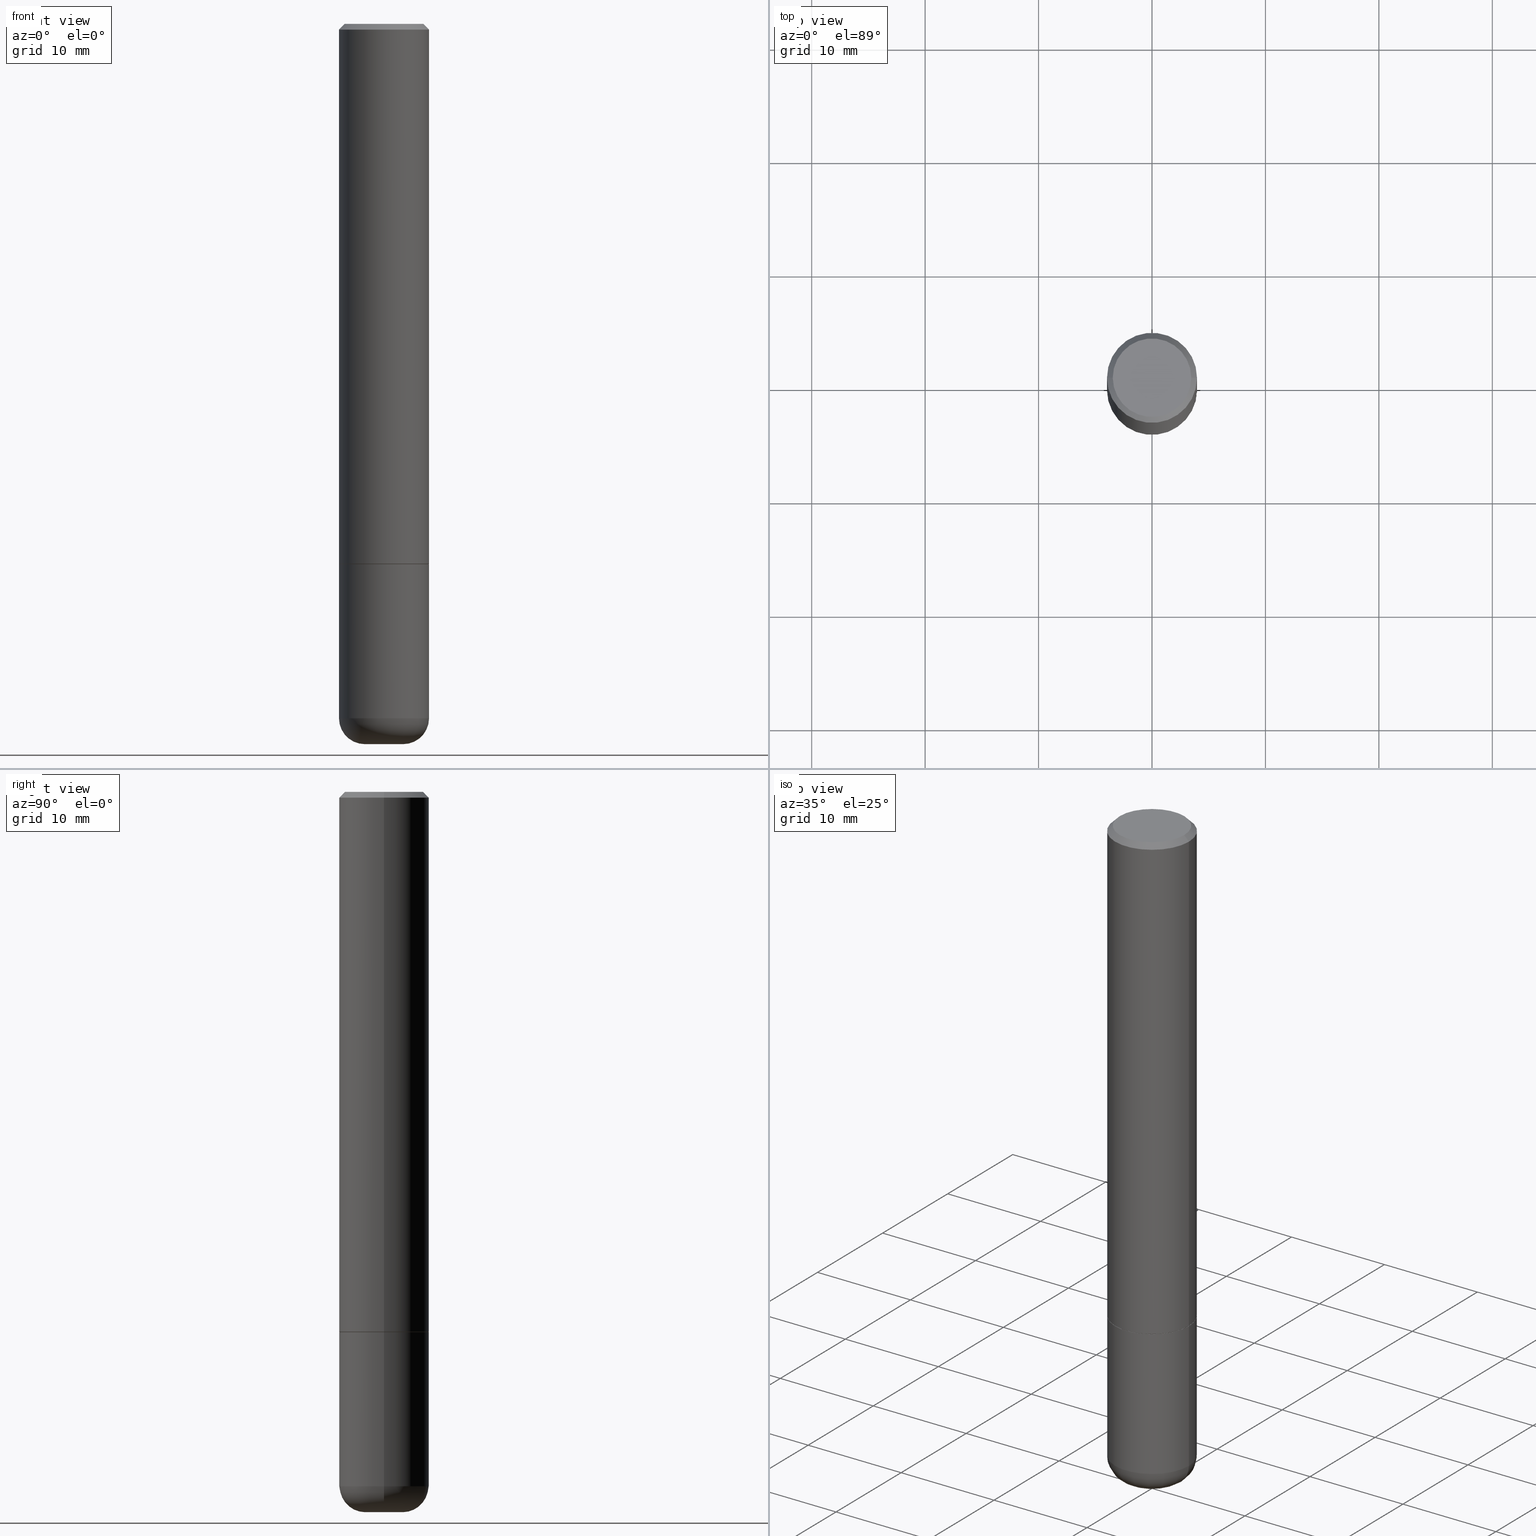
[diagram: canonical four-view strip — front | top / right | iso, engineering-drawing reading convention]
A machine part, canonical four-view strip (front | top / right | iso — engineering-drawing reading convention). The complete STEP part file that produces these views, byte-faithful:
ISO-10303-21;
HEADER;
FILE_DESCRIPTION (( 'STEP AP203' ),
    '1' );
FILE_NAME ('38813.STEP',
    '2024-03-03T14:22:21',
    ( '' ),
    ( '' ),
    'SwSTEP 2.0',
    'SolidWorks 2023',
    '' );
FILE_SCHEMA (( 'CONFIG_CONTROL_DESIGN' ));
ENDSEC;

DATA;
#1 = CARTESIAN_POINT ( 'NONE',  ( 4.890937612370281041E-31, -6.982962677686302702E-17, -0.02000000000000003511 ) ) ;
#2 = DIRECTION ( 'NONE',  ( 1.000000000000000000, -6.982962677686266711E-15, 4.876176775795936353E-29 ) ) ;
#3 = EDGE_CURVE ( 'NONE', #276, #123, #104, .T. ) ;
#4 = CARTESIAN_POINT ( 'NONE',  ( -0.06625000000000001721, -7.781107893326811349E-15, -2.500000000000000000 ) ) ;
#5 = EDGE_CURVE ( 'NONE', #358, #157, #407, .T. ) ;
#6 = CONICAL_SURFACE ( 'NONE', #291, 0.1552499999999999991, 0.7853981633975165577 ) ;
#7 = FACE_OUTER_BOUND ( 'NONE', #91, .T. ) ;
#8 = LINE ( 'NONE', #65, #169 ) ;
#9 = DIRECTION ( 'NONE',  ( 1.000000000000000000, -6.982962677686268288E-15, 0.000000000000000000 ) ) ;
#10 = DIRECTION ( 'NONE',  ( -2.445468806185136597E-29, 3.491481338843145583E-15, 1.000000000000000000 ) ) ;
#11 = PERSON_AND_ORGANIZATION_ROLE ( 'design_owner' ) ;
#12 = CARTESIAN_POINT ( 'NONE',  ( 0.1562500000000000000, -7.637615428719378669E-15, -1.875000000000000000 ) ) ;
#13 = ORIENTED_EDGE ( 'NONE', *, *, #275, .F. ) ;
#14 = LINE ( 'NONE', #302, #39 ) ;
#15 = DIRECTION ( 'NONE',  ( -2.445468806185136597E-29, 3.491481338843145583E-15, 1.000000000000000000 ) ) ;
#16 = DIRECTION ( 'NONE',  ( 1.000000000000000000, 0.000000000000000000, 0.000000000000000000 ) ) ;
#17 = AXIS2_PLACEMENT_3D ( 'NONE', #368, #69, #371 ) ;
#18 = APPROVAL_STATUS ( 'not_yet_approved' ) ;
#19 = FACE_OUTER_BOUND ( 'NONE', #60, .T. ) ;
#20 = MANIFOLD_SOLID_BREP ( 'Body-Move/Copy2[1]', #222 ) ;
#21 = LOCAL_TIME ( 9, 22, 21.00000000000000000, #176 ) ;
#22 = ORIENTED_EDGE ( 'NONE', *, *, #246, .F. ) ;
#23 = CARTESIAN_POINT ( 'NONE',  ( 0.1562500000000001388, -1.091087918388480160E-15, 7.619026212181157383E-30 ) ) ;
#24 = ORIENTED_EDGE ( 'NONE', *, *, #221, .F. ) ;
#25 = EDGE_LOOP ( 'NONE', ( #217, #97, #224, #13 ) ) ;
#26 = LINE ( 'NONE', #151, #250 ) ;
#27 = APPROVAL_PERSON_ORGANIZATION ( #315, #159, #178 ) ;
#28 = DIRECTION ( 'NONE',  ( 1.000000000000000000, -6.982962677686266711E-15, 0.000000000000000000 ) ) ;
#29 = CARTESIAN_POINT ( 'NONE',  ( 0.000000000000000000, 0.000000000000000000, 0.000000000000000000 ) ) ;
#30 = AXIS2_PLACEMENT_3D ( 'NONE', #171, #71, #401 ) ;
#31 = ORIENTED_EDGE ( 'NONE', *, *, #125, .T. ) ;
#32 = DIRECTION ( 'NONE',  ( 1.000000000000000000, -6.982962677686268288E-15, 0.000000000000000000 ) ) ;
#33 = LINE ( 'NONE', #149, #122 ) ;
#34 = CYLINDRICAL_SURFACE ( 'NONE', #48, 0.1562500000000001388 ) ;
#35 = FACE_OUTER_BOUND ( 'NONE', #121, .T. ) ;
#36 = CARTESIAN_POINT ( 'NONE',  ( 0.1562500000000002220, -7.634123947380535662E-15, -1.874000000000000110 ) ) ;
#37 = DIRECTION ( 'NONE',  ( -2.445468806185136597E-29, 3.491481338843145583E-15, 1.000000000000000000 ) ) ;
#38 = APPROVAL_ROLE ( '' ) ;
#39 = VECTOR ( 'NONE', #101, 39.37007874015748143 ) ;
#40 = EDGE_CURVE ( 'NONE', #323, #252, #33, .T. ) ;
#41 = UNCERTAINTY_MEASURE_WITH_UNIT (LENGTH_MEASURE( 1.000000000000000082E-05 ), #289, 'distance_accuracy_value', 'NONE');
#42 = CC_DESIGN_PERSON_AND_ORGANIZATION_ASSIGNMENT ( #44, #78, ( #144 ) ) ;
#43 = AXIS2_PLACEMENT_3D ( 'NONE', #54, #184, #190 ) ;
#44 = PERSON_AND_ORGANIZATION ( #206, #405 ) ;
#45 = CARTESIAN_POINT ( 'NONE',  ( 5.893579822906179826E-29, -8.414470026611981678E-15, -2.410000000000000142 ) ) ;
#46 = ORIENTED_EDGE ( 'NONE', *, *, #175, .T. ) ;
#47 = EDGE_CURVE ( 'NONE', #157, #358, #199, .T. ) ;
#48 = AXIS2_PLACEMENT_3D ( 'NONE', #162, #325, #327 ) ;
#49 = ORIENTED_EDGE ( 'NONE', *, *, #256, .T. ) ;
#50 = AXIS2_PLACEMENT_3D ( 'NONE', #220, #62, #292 ) ;
#51 = EDGE_CURVE ( 'NONE', #85, #357, #26, .T. ) ;
#52 = COORDINATED_UNIVERSAL_TIME_OFFSET ( 5, 0, .BEHIND. ) ;
#53 = ORIENTED_EDGE ( 'NONE', *, *, #138, .F. ) ;
#54 = CARTESIAN_POINT ( 'NONE',  ( 6.113672015462842613E-29, -8.728703347107864943E-15, -2.500000000000000000 ) ) ;
#55 = ORIENTED_EDGE ( 'NONE', *, *, #94, .T. ) ;
#56 = CARTESIAN_POINT ( 'NONE',  ( 0.1562500000000000278, -1.141782438928665105E-15, -0.02000000000000003511 ) ) ;
#57 = ORIENTED_EDGE ( 'NONE', *, *, #94, .F. ) ;
#58 = ORIENTED_EDGE ( 'NONE', *, *, #47, .T. ) ;
#59 = AXIS2_PLACEMENT_3D ( 'NONE', #344, #147, #305 ) ;
#60 = EDGE_LOOP ( 'NONE', ( #301, #396, #318, #103 ) ) ;
#61 = DIRECTION ( 'NONE',  ( 0.7071067811865957564, -2.468850131082761932E-15, 0.7071067811864992780 ) ) ;
#62 = DIRECTION ( 'NONE',  ( -6.982962677686266711E-15, -1.000000000000000000, 3.491481338843145583E-15 ) ) ;
#63 = CC_DESIGN_DATE_AND_TIME_ASSIGNMENT ( #117, #80, ( #341 ) ) ;
#64 = AXIS2_PLACEMENT_3D ( 'NONE', #365, #130, #263 ) ;
#65 = CARTESIAN_POINT ( 'NONE',  ( -0.1562500000000000278, 1.021258291611616467E-15, -0.02000000000000003511 ) ) ;
#66 = FACE_OUTER_BOUND ( 'NONE', #154, .T. ) ;
#67 = ORIENTED_EDGE ( 'NONE', *, *, #51, .T. ) ;
#68 = CARTESIAN_POINT ( 'NONE',  ( 0.000000000000000000, 0.000000000000000000, 0.000000000000000000 ) ) ;
#69 = DIRECTION ( 'NONE',  ( -2.438088387897960049E-29, 3.491481338843145188E-15, 1.000000000000000000 ) ) ;
#70 = EDGE_CURVE ( 'NONE', #349, #213, #8, .T. ) ;
#71 = DIRECTION ( 'NONE',  ( -2.445468806185136597E-29, 3.491481338843145583E-15, 1.000000000000000000 ) ) ;
#72 = DIRECTION ( 'NONE',  ( 0.000000000000000000, 0.000000000000000000, 1.000000000000000000 ) ) ;
#73 = CONICAL_SURFACE ( 'NONE', #235, 0.1562500000000000278, 0.7853981633974472798 ) ;
#74 = ADVANCED_FACE ( 'NONE', ( #262 ), #34, .T. ) ;
#75 = EDGE_LOOP ( 'NONE', ( #377, #58, #46, #418 ) ) ;
#76 = VECTOR ( 'NONE', #135, 39.37007874015748143 ) ;
#77 = CARTESIAN_POINT ( 'NONE',  ( -0.1552499999999999991, -5.443409913063343964E-15, -1.875000000000000000 ) ) ;
#78 = PERSON_AND_ORGANIZATION_ROLE ( 'design_supplier' ) ;
#79 = CALENDAR_DATE ( 2024, 3, 3 ) ;
#80 = DATE_TIME_ROLE ( 'classification_date' ) ;
#81 = CARTESIAN_POINT ( 'NONE',  ( 0.000000000000000000, 0.000000000000000000, 0.000000000000000000 ) ) ;
#82 = TOROIDAL_SURFACE ( 'NONE', #334, 0.06625000000000001721, 0.08999999999999992728 ) ;
#83 = ORIENTED_EDGE ( 'NONE', *, *, #40, .F. ) ;
#84 = AXIS2_PLACEMENT_3D ( 'NONE', #322, #288, #32 ) ;
#85 = VERTEX_POINT ( 'NONE', #233 ) ;
#86 = CIRCLE ( 'NONE', #153, 0.1362500000000000377 ) ;
#87 = ORIENTED_EDGE ( 'NONE', *, *, #3, .F. ) ;
#88 = DIRECTION ( 'NONE',  ( 0.7071067811865467956, -7.319954787623254468E-15, -0.7071067811865482389 ) ) ;
#89 = CARTESIAN_POINT ( 'NONE',  ( -0.1362500000000000377, 9.863434782231852123E-16, -6.775751096333141285E-30 ) ) ;
#90 = ADVANCED_FACE ( 'NONE', ( #366 ), #299, .F. ) ;
#91 = EDGE_LOOP ( 'NONE', ( #251, #49 ) ) ;
#92 = ORIENTED_EDGE ( 'NONE', *, *, #226, .F. ) ;
#93 = CIRCLE ( 'NONE', #335, 0.08999999999999992728 ) ;
#94 = EDGE_CURVE ( 'NONE', #252, #357, #333, .T. ) ;
#95 = DIRECTION ( 'NONE',  ( 1.000000000000000000, -6.982962677686265922E-15, 4.883557194083112340E-29 ) ) ;
#96 = ORIENTED_EDGE ( 'NONE', *, *, #231, .T. ) ;
#97 = ORIENTED_EDGE ( 'NONE', *, *, #226, .T. ) ;
#98 = DIRECTION ( 'NONE',  ( 1.000000000000000000, -6.982962677686268288E-15, 0.000000000000000000 ) ) ;
#99 = CONICAL_SURFACE ( 'NONE', #218, 0.1552499999999999991, 0.7853981633975165577 ) ;
#100 = APPLICATION_CONTEXT ( 'configuration controlled 3d designs of mechanical parts and assemblies' ) ;
#101 = DIRECTION ( 'NONE',  ( -2.445468806185136877E-29, 3.491481338843145188E-15, 1.000000000000000000 ) ) ;
#102 = DIRECTION ( 'NONE',  ( 1.000000000000000000, -6.982962677686266711E-15, 4.876176775795936353E-29 ) ) ;
#103 = ORIENTED_EDGE ( 'NONE', *, *, #175, .F. ) ;
#104 = CIRCLE ( 'NONE', #347, 0.1562500000000000000 ) ;
#105 = AXIS2_PLACEMENT_3D ( 'NONE', #374, #397, #300 ) ;
#106 = FACE_OUTER_BOUND ( 'NONE', #286, .T. ) ;
#107 = PERSON_AND_ORGANIZATION ( #206, #405 ) ;
#108 = ORIENTED_EDGE ( 'NONE', *, *, #114, .T. ) ;
#109 = PRODUCT ( '38813', '38813', '', ( #202 ) ) ;
#110 =( GEOMETRIC_REPRESENTATION_CONTEXT ( 3 ) GLOBAL_UNCERTAINTY_ASSIGNED_CONTEXT ( ( #41 ) ) GLOBAL_UNIT_ASSIGNED_CONTEXT ( ( #289, #198, #375 ) ) REPRESENTATION_CONTEXT ( 'NONE', 'WORKASPACE' ) );
#111 = ORIENTED_EDGE ( 'NONE', *, *, #326, .F. ) ;
#112 = CIRCLE ( 'NONE', #137, 0.1562500000000000000 ) ;
#113 = SECURITY_CLASSIFICATION_LEVEL ( 'unclassified' ) ;
#114 = EDGE_CURVE ( 'NONE', #252, #389, #248, .T. ) ;
#115 = APPROVAL_STATUS ( 'not_yet_approved' ) ;
#116 = DIRECTION ( 'NONE',  ( 1.000000000000000000, -6.982962677686262766E-15, 0.000000000000000000 ) ) ;
#117 = DATE_AND_TIME ( #211, #21 ) ;
#118 = VERTEX_POINT ( 'NONE', #242 ) ;
#119 = ORIENTED_EDGE ( 'NONE', *, *, #170, .F. ) ;
#120 = ORIENTED_EDGE ( 'NONE', *, *, #231, .F. ) ;
#121 = EDGE_LOOP ( 'NONE', ( #355, #148, #394, #83 ) ) ;
#122 = VECTOR ( 'NONE', #61, 39.37007874015748143 ) ;
#123 = VERTEX_POINT ( 'NONE', #382 ) ;
#124 = AXIS2_PLACEMENT_3D ( 'NONE', #29, #156, #2 ) ;
#125 = EDGE_CURVE ( 'NONE', #118, #410, #112, .T. ) ;
#126 = FACE_OUTER_BOUND ( 'NONE', #25, .T. ) ;
#127 = EDGE_LOOP ( 'NONE', ( #119, #208, #96, #111 ) ) ;
#128 = CARTESIAN_POINT ( 'NONE',  ( 4.582808542790945516E-29, -6.543036028992054911E-15, -1.874000000000000110 ) ) ;
#129 = VECTOR ( 'NONE', #338, 39.37007874015748143 ) ;
#130 = DIRECTION ( 'NONE',  ( -2.445468806185136597E-29, 3.491481338843145583E-15, 1.000000000000000000 ) ) ;
#131 = CARTESIAN_POINT ( 'NONE',  ( 6.113672015462842613E-29, -8.728703347107864943E-15, -2.500000000000000000 ) ) ;
#132 = PERSON_AND_ORGANIZATION ( #206, #405 ) ;
#133 = DIRECTION ( 'NONE',  ( 2.445468806185136597E-29, -3.491481338843145583E-15, -1.000000000000000000 ) ) ;
#134 = CC_DESIGN_PERSON_AND_ORGANIZATION_ASSIGNMENT ( #308, #412, ( #144 ) ) ;
#135 = DIRECTION ( 'NONE',  ( -2.445468806185136877E-29, 3.491481338843145188E-15, 1.000000000000000000 ) ) ;
#136 = APPROVAL_STATUS ( 'not_yet_approved' ) ;
#137 = AXIS2_PLACEMENT_3D ( 'NONE', #278, #416, #116 ) ;
#138 = EDGE_CURVE ( 'NONE', #357, #213, #384, .T. ) ;
#139 = PRODUCT_DEFINITION_SHAPE ( 'NONE', 'NONE',  #393 ) ;
#140 = ADVANCED_FACE ( 'NONE', ( #320 ), #390, .T. ) ;
#141 = LINE ( 'NONE', #77, #129 ) ;
#142 = EDGE_LOOP ( 'NONE', ( #108, #352, #53, #57 ) ) ;
#143 = FACE_OUTER_BOUND ( 'NONE', #75, .T. ) ;
#144 = PRODUCT_DEFINITION_FORMATION_WITH_SPECIFIED_SOURCE ( 'ANY', '', #109, .NOT_KNOWN. ) ;
#145 = AXIS2_PLACEMENT_3D ( 'NONE', #195, #15, #9 ) ;
#146 = MANIFOLD_SOLID_BREP ( 'Body-Move/Copy2[2]', #283 ) ;
#147 = DIRECTION ( 'NONE',  ( -2.445468806185136597E-29, 3.491481338843145583E-15, 1.000000000000000000 ) ) ;
#148 = ORIENTED_EDGE ( 'NONE', *, *, #316, .T. ) ;
#149 = CARTESIAN_POINT ( 'NONE',  ( 0.1552499999999999991, -7.630632466041692655E-15, -1.875000000000000000 ) ) ;
#150 = DATE_TIME_ROLE ( 'creation_date' ) ;
#151 = CARTESIAN_POINT ( 'NONE',  ( 0.1562500000000000278, -1.141782438928665105E-15, -0.02000000000000003511 ) ) ;
#152 = DIRECTION ( 'NONE',  ( 1.000000000000000000, -6.982962677686269077E-15, 0.000000000000000000 ) ) ;
#153 = AXIS2_PLACEMENT_3D ( 'NONE', #68, #264, #194 ) ;
#154 = EDGE_LOOP ( 'NONE', ( #31, #281, #87, #120 ) ) ;
#155 = FACE_OUTER_BOUND ( 'NONE', #414, .T. ) ;
#156 = DIRECTION ( 'NONE',  ( -2.445468806185136597E-29, 3.491481338843145583E-15, 1.000000000000000000 ) ) ;
#157 = VERTEX_POINT ( 'NONE', #4 ) ;
#158 = DIRECTION ( 'NONE',  ( 1.000000000000000000, -6.982962677686266711E-15, 0.000000000000000000 ) ) ;
#159 = APPROVAL ( #18, 'UNSPECIFIED' ) ;
#160 = APPROVAL_PERSON_ORGANIZATION ( #196, #311, #38 ) ;
#161 = AXIS2_PLACEMENT_3D ( 'NONE', #247, #216, #158 ) ;
#162 = CARTESIAN_POINT ( 'NONE',  ( 0.000000000000000000, 0.000000000000000000, 0.000000000000000000 ) ) ;
#163 = APPROVAL ( #115, 'UNSPECIFIED' ) ;
#164 = CARTESIAN_POINT ( 'NONE',  ( -0.1562500000000000278, 1.021258291611616467E-15, -0.02000000000000003511 ) ) ;
#165 = APPLICATION_PROTOCOL_DEFINITION ( 'international standard', 'config_control_design', 1994, #361 ) ;
#166 = CC_DESIGN_APPROVAL ( #159, ( #341 ) ) ;
#167 = CARTESIAN_POINT ( 'NONE',  ( 4.890937612370281041E-31, -6.982962677686302702E-17, -0.02000000000000003511 ) ) ;
#168 = DESIGN_CONTEXT ( 'detailed design', #100, 'design' ) ;
#169 = VECTOR ( 'NONE', #253, 39.37007874015748143 ) ;
#170 = EDGE_CURVE ( 'NONE', #410, #123, #359, .T. ) ;
#171 = CARTESIAN_POINT ( 'NONE',  ( 4.585254011597131119E-29, -6.546527510330898707E-15, -1.875000000000000000 ) ) ;
#172 = DIRECTION ( 'NONE',  ( -2.445468806185136597E-29, 3.491481338843145583E-15, 1.000000000000000000 ) ) ;
#173 = DIRECTION ( 'NONE',  ( -2.445468806185136877E-29, 3.491481338843145188E-15, 1.000000000000000000 ) ) ;
#174 = ORIENTED_EDGE ( 'NONE', *, *, #256, .F. ) ;
#175 = EDGE_CURVE ( 'NONE', #358, #118, #284, .T. ) ;
#176 = COORDINATED_UNIVERSAL_TIME_OFFSET ( 5, 0, .BEHIND. ) ;
#177 = EDGE_LOOP ( 'NONE', ( #22, #240, #55, #271 ) ) ;
#178 = APPROVAL_ROLE ( '' ) ;
#179 = AXIS2_PLACEMENT_3D ( 'NONE', #1, #259, #254 ) ;
#180 = VECTOR ( 'NONE', #173, 39.37007874015748143 ) ;
#181 = DIRECTION ( 'NONE',  ( 1.000000000000000000, -6.982962677686269077E-15, 0.000000000000000000 ) ) ;
#182 = APPROVAL_DATE_TIME ( #306, #163 ) ;
#183 = ORIENTED_EDGE ( 'NONE', *, *, #138, .T. ) ;
#184 = DIRECTION ( 'NONE',  ( -2.445468806185136597E-29, 3.491481338843145583E-15, 1.000000000000000000 ) ) ;
#185 = ADVANCED_FACE ( 'NONE', ( #7 ), #337, .F. ) ;
#186 = CARTESIAN_POINT ( 'NONE',  ( 0.06625000000000001721, -9.191324624504579954E-15, -2.500000000000000000 ) ) ;
#187 = ORIENTED_EDGE ( 'NONE', *, *, #351, .T. ) ;
#188 = AXIS2_PLACEMENT_3D ( 'NONE', #409, #172, #95 ) ;
#189 = ORIENTED_EDGE ( 'NONE', *, *, #3, .T. ) ;
#190 = DIRECTION ( 'NONE',  ( 1.000000000000000000, -6.982962677686268288E-15, 0.000000000000000000 ) ) ;
#191 = DIRECTION ( 'NONE',  ( -2.445468806185136877E-29, 3.491481338843145188E-15, 1.000000000000000000 ) ) ;
#192 = VECTOR ( 'NONE', #191, 39.37007874015748143 ) ;
#193 = PRODUCT_RELATED_PRODUCT_CATEGORY ( 'detail', '', ( #109 ) ) ;
#194 = DIRECTION ( 'NONE',  ( 1.000000000000000000, -6.982962677686266711E-15, 4.876176775795936353E-29 ) ) ;
#195 = CARTESIAN_POINT ( 'NONE',  ( 4.585254011597131119E-29, -6.546527510330898707E-15, -1.875000000000000000 ) ) ;
#196 = PERSON_AND_ORGANIZATION ( #206, #405 ) ;
#197 = APPROVAL_PERSON_ORGANIZATION ( #346, #163, #413 ) ;
#198 =( NAMED_UNIT ( * ) PLANE_ANGLE_UNIT ( ) SI_UNIT ( $, .RADIAN. ) );
#199 = CIRCLE ( 'NONE', #43, 0.06625000000000001721 ) ;
#200 = ADVANCED_FACE ( 'NONE', ( #66 ), #244, .T. ) ;
#201 = CARTESIAN_POINT ( 'NONE',  ( 0.000000000000000000, 0.000000000000000000, 0.000000000000000000 ) ) ;
#202 = MECHANICAL_CONTEXT ( 'NONE', #361, 'mechanical' ) ;
#203 = APPROVAL_DATE_TIME ( #373, #311 ) ;
#204 = LOCAL_TIME ( 9, 22, 21.00000000000000000, #350 ) ;
#205 = AXIS2_PLACEMENT_3D ( 'NONE', #81, #212, #348 ) ;
#206 = PERSON ( 'UNSPECIFIED', 'UNSPECIFIED', 'UNSPECIFIED', ('UNSPECIFIED'), ('UNSPECIFIED'), ('UNSPECIFIED') ) ;
#207 = SHAPE_DEFINITION_REPRESENTATION ( #139, #388 ) ;
#208 = ORIENTED_EDGE ( 'NONE', *, *, #404, .T. ) ;
#209 = ADVANCED_FACE ( 'NONE', ( #280 ), #257, .T. ) ;
#210 = CARTESIAN_POINT ( 'NONE',  ( -0.1552499999999999991, -5.438111458715120773E-15, -1.875000000000000000 ) ) ;
#211 = CALENDAR_DATE ( 2024, 3, 3 ) ;
#212 = DIRECTION ( 'NONE',  ( -2.445468806185136597E-29, 3.491481338843145583E-15, 1.000000000000000000 ) ) ;
#213 = VERTEX_POINT ( 'NONE', #164 ) ;
#214 = CIRCLE ( 'NONE', #310, 0.1562500000000002220 ) ;
#215 = ADVANCED_FACE ( 'NONE', ( #236 ), #225, .T. ) ;
#216 = DIRECTION ( 'NONE',  ( -2.445468806185136597E-29, 3.491481338843145583E-15, 1.000000000000000000 ) ) ;
#217 = ORIENTED_EDGE ( 'NONE', *, *, #316, .F. ) ;
#218 = AXIS2_PLACEMENT_3D ( 'NONE', #402, #400, #228 ) ;
#219 = CIRCLE ( 'NONE', #223, 0.1562500000000000000 ) ;
#220 = CARTESIAN_POINT ( 'NONE',  ( 0.06625000000000001721, -8.877091304008696690E-15, -2.410000000000000142 ) ) ;
#221 = EDGE_CURVE ( 'NONE', #349, #85, #86, .T. ) ;
#222 = CLOSED_SHELL ( 'NONE', ( #200, #406, #237, #140, #324, #215 ) ) ;
#223 = AXIS2_PLACEMENT_3D ( 'NONE', #269, #314, #152 ) ;
#224 = ORIENTED_EDGE ( 'NONE', *, *, #40, .T. ) ;
#225 = PLANE ( 'NONE',  #274 ) ;
#226 = EDGE_CURVE ( 'NONE', #287, #323, #398, .T. ) ;
#227 = CARTESIAN_POINT ( 'NONE',  ( 4.585254011597131119E-29, -6.546527510330898707E-15, -1.875000000000000000 ) ) ;
#228 = DIRECTION ( 'NONE',  ( 1.000000000000000000, -6.982962677686268288E-15, 0.000000000000000000 ) ) ;
#229 = DIRECTION ( 'NONE',  ( -2.445468806185136597E-29, 3.491481338843145583E-15, 1.000000000000000000 ) ) ;
#230 = APPLICATION_PROTOCOL_DEFINITION ( 'international standard', 'config_control_design', 1994, #100 ) ;
#231 = EDGE_CURVE ( 'NONE', #118, #276, #14, .T. ) ;
#232 = LENGTH_MEASURE_WITH_UNIT ( LENGTH_MEASURE( 0.02539999999999999897 ), #296 );
#233 = CARTESIAN_POINT ( 'NONE',  ( 0.1362500000000000377, -1.038262645562518322E-15, 6.957025900226697878E-30 ) ) ;
#234 = CC_DESIGN_PERSON_AND_ORGANIZATION_ASSIGNMENT ( #339, #376, ( #393 ) ) ;
#235 = AXIS2_PLACEMENT_3D ( 'NONE', #167, #133, #372 ) ;
#236 = FACE_OUTER_BOUND ( 'NONE', #317, .T. ) ;
#237 = ADVANCED_FACE ( 'NONE', ( #367 ), #330, .F. ) ;
#238 = DIRECTION ( 'NONE',  ( -1.000000000000000000, 6.982962677686265922E-15, -4.876176775795935793E-29 ) ) ;
#239 = AXIS2_PLACEMENT_3D ( 'NONE', #363, #72, #16 ) ;
#240 = ORIENTED_EDGE ( 'NONE', *, *, #275, .T. ) ;
#241 = COORDINATED_UNIVERSAL_TIME_OFFSET ( 5, 0, .BEHIND. ) ;
#242 = CARTESIAN_POINT ( 'NONE',  ( 0.1562499999999999722, -9.505557945000458485E-15, -2.410000000000000142 ) ) ;
#243 = PERSON_AND_ORGANIZATION_ROLE ( 'classification_officer' ) ;
#244 = CYLINDRICAL_SURFACE ( 'NONE', #205, 0.1562500000000000000 ) ;
#245 = EDGE_CURVE ( 'NONE', #323, #287, #411, .T. ) ;
#246 = EDGE_CURVE ( 'NONE', #389, #213, #332, .T. ) ;
#247 = CARTESIAN_POINT ( 'NONE',  ( 4.890937612370281041E-31, -6.982962677686302702E-17, -0.02000000000000003511 ) ) ;
#248 = CIRCLE ( 'NONE', #59, 0.1562500000000002220 ) ;
#249 = CARTESIAN_POINT ( 'NONE',  ( -0.1562500000000000000, 1.110223024625156540E-15, -7.685836078523291160E-30 ) ) ;
#250 = VECTOR ( 'NONE', #88, 39.37007874015748143 ) ;
#251 = ORIENTED_EDGE ( 'NONE', *, *, #221, .T. ) ;
#252 = VERTEX_POINT ( 'NONE', #36 ) ;
#253 = DIRECTION ( 'NONE',  ( -0.7071067811865467956, 2.468850131082249172E-15, -0.7071067811865482389 ) ) ;
#254 = DIRECTION ( 'NONE',  ( -1.000000000000000000, 6.982962677686268288E-15, 0.000000000000000000 ) ) ;
#255 = ORIENTED_EDGE ( 'NONE', *, *, #47, .F. ) ;
#256 = EDGE_CURVE ( 'NONE', #85, #349, #321, .T. ) ;
#257 = CYLINDRICAL_SURFACE ( 'NONE', #342, 0.1562500000000001388 ) ;
#258 = DIMENSIONAL_EXPONENTS ( 1.000000000000000000, 0.000000000000000000, 0.000000000000000000, 0.000000000000000000, 0.000000000000000000, 0.000000000000000000, 0.000000000000000000 ) ;
#259 = DIRECTION ( 'NONE',  ( 2.445468806185136597E-29, -3.491481338843145583E-15, -1.000000000000000000 ) ) ;
#260 = AXIS2_PLACEMENT_3D ( 'NONE', #294, #266, #238 ) ;
#261 = DIRECTION ( 'NONE',  ( 1.000000000000000000, -6.982962677686266711E-15, 4.876176775795936353E-29 ) ) ;
#262 = FACE_OUTER_BOUND ( 'NONE', #142, .T. ) ;
#263 = DIRECTION ( 'NONE',  ( 1.000000000000000000, -6.982962677686262766E-15, 0.000000000000000000 ) ) ;
#264 = DIRECTION ( 'NONE',  ( -2.445468806185136597E-29, 3.491481338843145583E-15, 1.000000000000000000 ) ) ;
#265 = LOCAL_TIME ( 9, 22, 21.00000000000000000, #408 ) ;
#266 = DIRECTION ( 'NONE',  ( 2.438088387897960049E-29, -3.491481338843145188E-15, -1.000000000000000000 ) ) ;
#267 = CONICAL_SURFACE ( 'NONE', #179, 0.1562500000000000278, 0.7853981633974472798 ) ;
#268 = ADVANCED_FACE ( 'NONE', ( #106 ), #73, .T. ) ;
#269 = CARTESIAN_POINT ( 'NONE',  ( 4.585254011597131119E-29, -6.546527510330898707E-15, -1.875000000000000000 ) ) ;
#270 = DATE_AND_TIME ( #79, #328 ) ;
#271 = ORIENTED_EDGE ( 'NONE', *, *, #351, .F. ) ;
#272 = DIRECTION ( 'NONE',  ( -2.445468806185136597E-29, 3.491481338843145583E-15, 1.000000000000000000 ) ) ;
#273 = DATE_AND_TIME ( #381, #204 ) ;
#274 = AXIS2_PLACEMENT_3D ( 'NONE', #131, #362, #336 ) ;
#275 = EDGE_CURVE ( 'NONE', #389, #252, #214, .T. ) ;
#276 = VERTEX_POINT ( 'NONE', #12 ) ;
#277 = CARTESIAN_POINT ( 'NONE',  ( 4.585254011597131119E-29, -6.546527510330898707E-15, -1.875000000000000000 ) ) ;
#278 = CARTESIAN_POINT ( 'NONE',  ( 5.893579822906179826E-29, -8.414470026611981678E-15, -2.410000000000000142 ) ) ;
#279 = DIRECTION ( 'NONE',  ( 1.000000000000000000, -6.982962677686265922E-15, 4.883557194083112340E-29 ) ) ;
#280 = FACE_OUTER_BOUND ( 'NONE', #177, .T. ) ;
#281 = ORIENTED_EDGE ( 'NONE', *, *, #170, .T. ) ;
#282 = CARTESIAN_POINT ( 'NONE',  ( -0.06625000000000001721, -7.943735464170915873E-15, -2.410000000000000142 ) ) ;
#283 = CLOSED_SHELL ( 'NONE', ( #415, #74, #364, #268, #209, #370, #90, #185 ) ) ;
#284 = CIRCLE ( 'NONE', #50, 0.08999999999999992728 ) ;
#285 = DIRECTION ( 'NONE',  ( 7.105427357601001859E-15, 1.000000000000000000, -3.491481338843145583E-15 ) ) ;
#286 = EDGE_LOOP ( 'NONE', ( #307, #24, #380, #187 ) ) ;
#287 = VERTEX_POINT ( 'NONE', #210 ) ;
#288 = DIRECTION ( 'NONE',  ( -2.445468806185136597E-29, 3.491481338843145583E-15, 1.000000000000000000 ) ) ;
#289 =( CONVERSION_BASED_UNIT ( 'INCH', #232 ) LENGTH_UNIT ( ) NAMED_UNIT ( #258 ) );
#290 = CC_DESIGN_PERSON_AND_ORGANIZATION_ASSIGNMENT ( #132, #11, ( #109 ) ) ;
#291 = AXIS2_PLACEMENT_3D ( 'NONE', #227, #395, #98 ) ;
#292 = DIRECTION ( 'NONE',  ( 1.000000000000000000, -6.982962677686273810E-15, 0.000000000000000000 ) ) ;
#293 = ORIENTED_EDGE ( 'NONE', *, *, #326, .T. ) ;
#294 = CARTESIAN_POINT ( 'NONE',  ( 4.585254011597131119E-29, -6.546527510330898707E-15, -1.875000000000000000 ) ) ;
#295 = CARTESIAN_POINT ( 'NONE',  ( 0.000000000000000000, 0.000000000000000000, 0.000000000000000000 ) ) ;
#296 =( LENGTH_UNIT ( ) NAMED_UNIT ( * ) SI_UNIT ( $, .METRE. ) );
#297 = CC_DESIGN_PERSON_AND_ORGANIZATION_ASSIGNMENT ( #107, #243, ( #341 ) ) ;
#298 = DIRECTION ( 'NONE',  ( 1.000000000000000000, -6.982962677686265922E-15, 0.000000000000000000 ) ) ;
#299 = PLANE ( 'NONE',  #17 ) ;
#300 = DIRECTION ( 'NONE',  ( -1.000000000000000000, 6.982962677686265922E-15, -4.876176775795935793E-29 ) ) ;
#301 = ORIENTED_EDGE ( 'NONE', *, *, #5, .T. ) ;
#302 = CARTESIAN_POINT ( 'NONE',  ( 0.1562500000000000000, -1.091087918388479174E-15, 7.619026212181150377E-30 ) ) ;
#303 = LOCAL_TIME ( 9, 22, 21.00000000000000000, #52 ) ;
#304 = CARTESIAN_POINT ( 'NONE',  ( -0.1562499999999999722, -7.304247001986825138E-15, -2.410000000000000142 ) ) ;
#305 = DIRECTION ( 'NONE',  ( 1.000000000000000000, -6.982962677686265922E-15, 0.000000000000000000 ) ) ;
#306 = DATE_AND_TIME ( #383, #303 ) ;
#307 = ORIENTED_EDGE ( 'NONE', *, *, #51, .F. ) ;
#308 = PERSON_AND_ORGANIZATION ( #206, #405 ) ;
#309 = ORIENTED_EDGE ( 'NONE', *, *, #245, .F. ) ;
#310 = AXIS2_PLACEMENT_3D ( 'NONE', #128, #37, #298 ) ;
#311 = APPROVAL ( #136, 'UNSPECIFIED' ) ;
#312 = APPROVAL_DATE_TIME ( #270, #159 ) ;
#313 = CIRCLE ( 'NONE', #64, 0.1562500000000000000 ) ;
#314 = DIRECTION ( 'NONE',  ( -2.445468806185136597E-29, 3.491481338843145583E-15, 1.000000000000000000 ) ) ;
#315 = PERSON_AND_ORGANIZATION ( #206, #405 ) ;
#316 = EDGE_CURVE ( 'NONE', #287, #389, #141, .T. ) ;
#317 = EDGE_LOOP ( 'NONE', ( #385, #255 ) ) ;
#318 = ORIENTED_EDGE ( 'NONE', *, *, #125, .F. ) ;
#319 = CARTESIAN_POINT ( 'NONE',  ( 4.890937612370281041E-31, -6.982962677686302702E-17, -0.02000000000000003511 ) ) ;
#320 = FACE_OUTER_BOUND ( 'NONE', #127, .T. ) ;
#321 = CIRCLE ( 'NONE', #356, 0.1362500000000000377 ) ;
#322 = CARTESIAN_POINT ( 'NONE',  ( 6.113672015462842613E-29, -8.728703347107864943E-15, -2.500000000000000000 ) ) ;
#323 = VERTEX_POINT ( 'NONE', #345 ) ;
#324 = ADVANCED_FACE ( 'NONE', ( #143 ), #329, .T. ) ;
#325 = DIRECTION ( 'NONE',  ( -2.445468806185136597E-29, 3.491481338843145583E-15, 1.000000000000000000 ) ) ;
#326 = EDGE_CURVE ( 'NONE', #123, #276, #219, .T. ) ;
#327 = DIRECTION ( 'NONE',  ( 1.000000000000000000, -6.982962677686266711E-15, 4.876176775795936353E-29 ) ) ;
#328 = LOCAL_TIME ( 9, 22, 21.00000000000000000, #241 ) ;
#329 = TOROIDAL_SURFACE ( 'NONE', #188, 0.06625000000000001721, 0.08999999999999992728 ) ;
#330 = PLANE ( 'NONE',  #260 ) ;
#331 = CARTESIAN_POINT ( 'NONE',  ( -0.1562500000000001388, 1.110223024625157526E-15, -7.685836078523296765E-30 ) ) ;
#332 = LINE ( 'NONE', #331, #76 ) ;
#333 = LINE ( 'NONE', #23, #180 ) ;
#334 = AXIS2_PLACEMENT_3D ( 'NONE', #45, #272, #279 ) ;
#335 = AXIS2_PLACEMENT_3D ( 'NONE', #282, #285, #387 ) ;
#336 = DIRECTION ( 'NONE',  ( -1.000000000000000000, 6.982962677686265922E-15, -4.876176775795935793E-29 ) ) ;
#337 = PLANE ( 'NONE',  #105 ) ;
#338 = DIRECTION ( 'NONE',  ( -0.7071067811865957564, 7.493145998870527710E-15, 0.7071067811864992780 ) ) ;
#339 = PERSON_AND_ORGANIZATION ( #206, #405 ) ;
#340 = EDGE_CURVE ( 'NONE', #157, #410, #93, .T. ) ;
#341 = SECURITY_CLASSIFICATION ( '', '', #113 ) ;
#342 = AXIS2_PLACEMENT_3D ( 'NONE', #201, #229, #261 ) ;
#343 = EDGE_LOOP ( 'NONE', ( #309, #92 ) ) ;
#344 = CARTESIAN_POINT ( 'NONE',  ( 4.582808542790945516E-29, -6.543036028992054911E-15, -1.874000000000000110 ) ) ;
#345 = CARTESIAN_POINT ( 'NONE',  ( 0.1552499999999999991, -7.630632466041692655E-15, -1.875000000000000000 ) ) ;
#346 = PERSON_AND_ORGANIZATION ( #206, #405 ) ;
#347 = AXIS2_PLACEMENT_3D ( 'NONE', #277, #386, #181 ) ;
#348 = DIRECTION ( 'NONE',  ( 1.000000000000000000, -6.982962677686266711E-15, 4.876176775795936353E-29 ) ) ;
#349 = VERTEX_POINT ( 'NONE', #89 ) ;
#350 = COORDINATED_UNIVERSAL_TIME_OFFSET ( 5, 0, .BEHIND. ) ;
#351 = EDGE_CURVE ( 'NONE', #213, #357, #392, .T. ) ;
#352 = ORIENTED_EDGE ( 'NONE', *, *, #246, .T. ) ;
#353 = DIRECTION ( 'NONE',  ( -2.445468806185136597E-29, 3.491481338843145583E-15, 1.000000000000000000 ) ) ;
#354 = ORIENTED_EDGE ( 'NONE', *, *, #70, .F. ) ;
#355 = ORIENTED_EDGE ( 'NONE', *, *, #245, .T. ) ;
#356 = AXIS2_PLACEMENT_3D ( 'NONE', #295, #10, #102 ) ;
#357 = VERTEX_POINT ( 'NONE', #56 ) ;
#358 = VERTEX_POINT ( 'NONE', #186 ) ;
#359 = LINE ( 'NONE', #249, #192 ) ;
#360 = CC_DESIGN_APPROVAL ( #311, ( #393 ) ) ;
#361 = APPLICATION_CONTEXT ( 'configuration controlled 3d designs of mechanical parts and assemblies' ) ;
#362 = DIRECTION ( 'NONE',  ( 2.438088387897960049E-29, -3.491481338843145188E-15, -1.000000000000000000 ) ) ;
#363 = CARTESIAN_POINT ( 'NONE',  ( 0.000000000000000000, 0.000000000000000000, 0.000000000000000000 ) ) ;
#364 = ADVANCED_FACE ( 'NONE', ( #155 ), #267, .T. ) ;
#365 = CARTESIAN_POINT ( 'NONE',  ( 5.893579822906179826E-29, -8.414470026611981678E-15, -2.410000000000000142 ) ) ;
#366 = FACE_OUTER_BOUND ( 'NONE', #343, .T. ) ;
#367 = FACE_OUTER_BOUND ( 'NONE', #417, .T. ) ;
#368 = CARTESIAN_POINT ( 'NONE',  ( 4.585254011597131119E-29, -6.546527510330898707E-15, -1.875000000000000000 ) ) ;
#369 = AXIS2_PLACEMENT_3D ( 'NONE', #319, #353, #28 ) ;
#370 = ADVANCED_FACE ( 'NONE', ( #126 ), #6, .T. ) ;
#371 = DIRECTION ( 'NONE',  ( 1.000000000000000000, -6.982962677686265922E-15, 4.876176775795935793E-29 ) ) ;
#372 = DIRECTION ( 'NONE',  ( -1.000000000000000000, 6.982962677686268288E-15, 0.000000000000000000 ) ) ;
#373 = DATE_AND_TIME ( #403, #265 ) ;
#374 = CARTESIAN_POINT ( 'NONE',  ( 9.514286648347541549E-16, 0.1362500000000000377, -4.757143324173787538E-16 ) ) ;
#375 =( NAMED_UNIT ( * ) SI_UNIT ( $, .STERADIAN. ) SOLID_ANGLE_UNIT ( ) );
#376 = PERSON_AND_ORGANIZATION_ROLE ( 'creator' ) ;
#377 = ORIENTED_EDGE ( 'NONE', *, *, #340, .F. ) ;
#378 = CC_DESIGN_SECURITY_CLASSIFICATION ( #341, ( #144 ) ) ;
#379 = CC_DESIGN_DATE_AND_TIME_ASSIGNMENT ( #273, #150, ( #393 ) ) ;
#380 = ORIENTED_EDGE ( 'NONE', *, *, #70, .T. ) ;
#381 = CALENDAR_DATE ( 2024, 3, 3 ) ;
#382 = CARTESIAN_POINT ( 'NONE',  ( -0.1562500000000000000, -6.370275743846283652E-15, -1.875000000000000000 ) ) ;
#383 = CALENDAR_DATE ( 2024, 3, 3 ) ;
#384 = CIRCLE ( 'NONE', #161, 0.1562500000000000278 ) ;
#385 = ORIENTED_EDGE ( 'NONE', *, *, #5, .F. ) ;
#386 = DIRECTION ( 'NONE',  ( -2.445468806185136597E-29, 3.491481338843145583E-15, 1.000000000000000000 ) ) ;
#387 = DIRECTION ( 'NONE',  ( -1.000000000000000000, 7.105427357601006592E-15, 0.000000000000000000 ) ) ;
#388 = ADVANCED_BREP_SHAPE_REPRESENTATION ( '38813', ( #20, #146, #239 ), #110 ) ;
#389 = VERTEX_POINT ( 'NONE', #399 ) ;
#390 = CYLINDRICAL_SURFACE ( 'NONE', #124, 0.1562500000000000000 ) ;
#391 = CC_DESIGN_APPROVAL ( #163, ( #144 ) ) ;
#392 = CIRCLE ( 'NONE', #369, 0.1562500000000000278 ) ;
#393 = PRODUCT_DEFINITION ( 'UNKNOWN', '', #144, #168 ) ;
#394 = ORIENTED_EDGE ( 'NONE', *, *, #114, .F. ) ;
#395 = DIRECTION ( 'NONE',  ( -2.445468806185136597E-29, 3.491481338843145583E-15, 1.000000000000000000 ) ) ;
#396 = ORIENTED_EDGE ( 'NONE', *, *, #340, .T. ) ;
#397 = DIRECTION ( 'NONE',  ( 2.438088387897960049E-29, -3.491481338843145188E-15, -1.000000000000000000 ) ) ;
#398 = CIRCLE ( 'NONE', #30, 0.1552499999999999991 ) ;
#399 = CARTESIAN_POINT ( 'NONE',  ( -0.1562500000000002220, -2.196209803259299803E-15, -1.874000000000000110 ) ) ;
#400 = DIRECTION ( 'NONE',  ( -2.445468806185136597E-29, 3.491481338843145583E-15, 1.000000000000000000 ) ) ;
#401 = DIRECTION ( 'NONE',  ( 1.000000000000000000, -6.982962677686268288E-15, 0.000000000000000000 ) ) ;
#402 = CARTESIAN_POINT ( 'NONE',  ( 4.585254011597131119E-29, -6.546527510330898707E-15, -1.875000000000000000 ) ) ;
#403 = CALENDAR_DATE ( 2024, 3, 3 ) ;
#404 = EDGE_CURVE ( 'NONE', #410, #118, #313, .T. ) ;
#405 = ORGANIZATION ( 'UNSPECIFIED', 'UNSPECIFIED', '' ) ;
#406 = ADVANCED_FACE ( 'NONE', ( #19 ), #82, .T. ) ;
#407 = CIRCLE ( 'NONE', #84, 0.06625000000000001721 ) ;
#408 = COORDINATED_UNIVERSAL_TIME_OFFSET ( 5, 0, .BEHIND. ) ;
#409 = CARTESIAN_POINT ( 'NONE',  ( 5.893579822906179826E-29, -8.414470026611981678E-15, -2.410000000000000142 ) ) ;
#410 = VERTEX_POINT ( 'NONE', #304 ) ;
#411 = CIRCLE ( 'NONE', #145, 0.1552499999999999991 ) ;
#412 = PERSON_AND_ORGANIZATION_ROLE ( 'creator' ) ;
#413 = APPROVAL_ROLE ( '' ) ;
#414 = EDGE_LOOP ( 'NONE', ( #174, #67, #183, #354 ) ) ;
#415 = ADVANCED_FACE ( 'NONE', ( #35 ), #99, .T. ) ;
#416 = DIRECTION ( 'NONE',  ( -2.445468806185136597E-29, 3.491481338843145583E-15, 1.000000000000000000 ) ) ;
#417 = EDGE_LOOP ( 'NONE', ( #189, #293 ) ) ;
#418 = ORIENTED_EDGE ( 'NONE', *, *, #404, .F. ) ;
ENDSEC;
END-ISO-10303-21;
